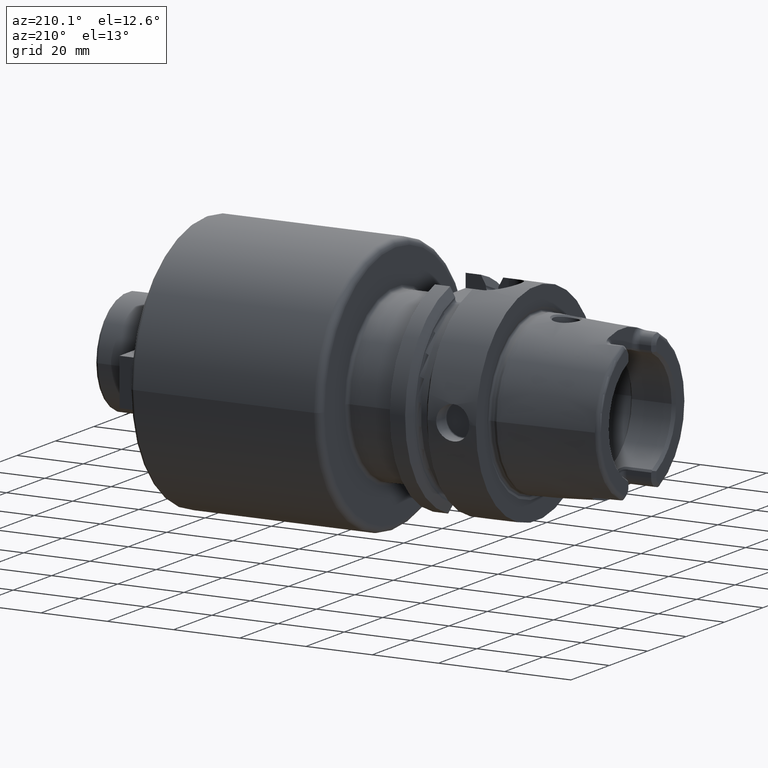
[diagram: clean part render]
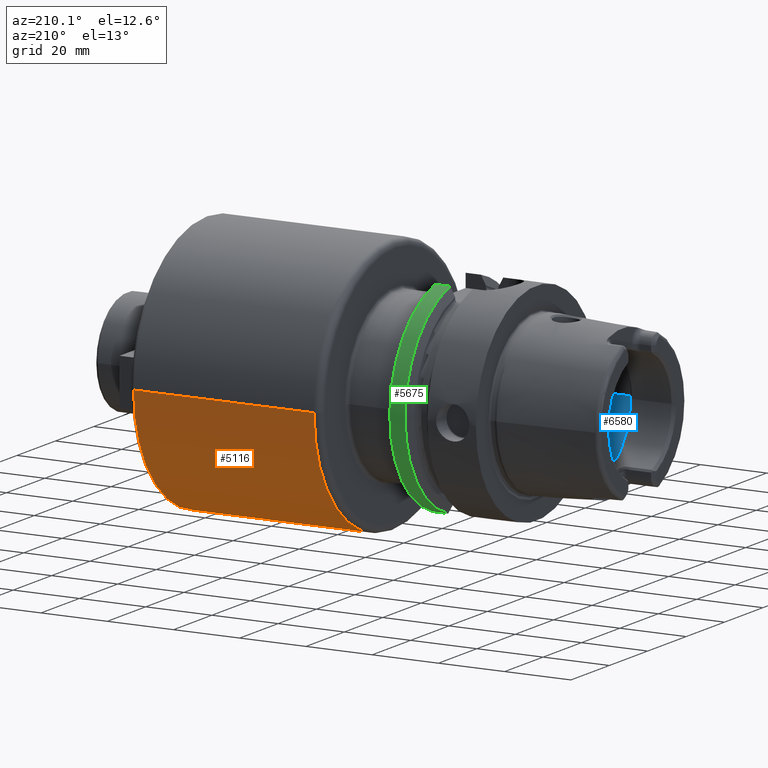
[diagram: same view with three faces highlighted in distinct colors, each labeled with its STEP entity id]
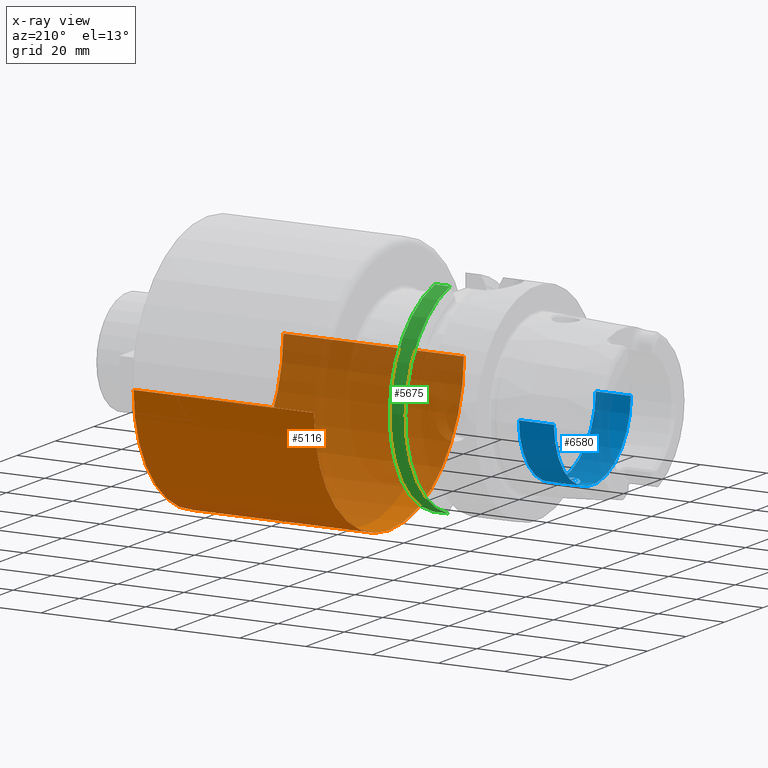
[diagram: x-ray of the same camera — body ghosted, the three highlighted faces saturated]
A machine part, auxiliary view with three faces highlighted in distinct colors.
The next image is the same camera in x-ray (body ghosted, the three faces saturated) — at least one of them is partly hidden behind the body in this view.
Their STEP definitions:

[orange] entity #5116 — the highlighted cylindrical surface (partial cylindrical patch) has radius 39 mm, axis along (1, 0, 0).
#1526=CARTESIAN_POINT('',(4.45E1,0.E0,0.E0));
#1527=DIRECTION('',(1.E0,0.E0,0.E0));
#1528=DIRECTION('',(0.E0,-1.E0,0.E0));
#1529=AXIS2_PLACEMENT_3D('',#1526,#1527,#1528);
#1531=DIRECTION('',(-1.E0,0.E0,0.E0));
#1532=VECTOR('',#1531,5.45E1);
#1533=CARTESIAN_POINT('',(9.9E1,-3.9E1,3.072033012646E-14));
#1534=LINE('',#1533,#1532);
#1535=CARTESIAN_POINT('',(9.9E1,0.E0,0.E0));
#1536=DIRECTION('',(-1.E0,0.E0,0.E0));
#1537=DIRECTION('',(0.E0,1.E0,0.E0));
#1538=AXIS2_PLACEMENT_3D('',#1535,#1536,#1537);
#1540=DIRECTION('',(-1.E0,0.E0,0.E0));
#1541=VECTOR('',#1540,5.45E1);
#1542=CARTESIAN_POINT('',(9.9E1,3.9E1,-3.191436075563E-14));
#1543=LINE('',#1542,#1541);
#3267=CARTESIAN_POINT('',(9.9E1,3.9E1,0.E0));
#3268=CARTESIAN_POINT('',(9.9E1,-3.9E1,0.E0));
#3269=VERTEX_POINT('',#3267);
#3270=VERTEX_POINT('',#3268);
#3368=CARTESIAN_POINT('',(4.45E1,-3.9E1,0.E0));
#3369=CARTESIAN_POINT('',(4.45E1,3.9E1,0.E0));
#3370=VERTEX_POINT('',#3368);
#3371=VERTEX_POINT('',#3369);
#5102=CARTESIAN_POINT('',(2.11E1,0.E0,0.E0));
#5103=DIRECTION('',(1.E0,0.E0,0.E0));
#5104=DIRECTION('',(0.E0,-1.E0,0.E0));
#5105=AXIS2_PLACEMENT_3D('',#5102,#5103,#5104);
#5106=CYLINDRICAL_SURFACE('',#5105,3.9E1);
#5107=ORIENTED_EDGE('',*,*,#5092,.F.);
#5109=ORIENTED_EDGE('',*,*,#5108,.F.);
#5111=ORIENTED_EDGE('',*,*,#5110,.F.);
#5113=ORIENTED_EDGE('',*,*,#5112,.T.);
#5114=EDGE_LOOP('',(#5107,#5109,#5111,#5113));
#5115=FACE_OUTER_BOUND('',#5114,.F.);
#5116=ADVANCED_FACE('',(#5115),#5106,.T.);
#1530=CIRCLE('',#1529,3.9E1);
#1539=CIRCLE('',#1538,3.9E1);
#5092=EDGE_CURVE('',#3370,#3371,#1530,.T.);
#5108=EDGE_CURVE('',#3270,#3370,#1534,.T.);
#5110=EDGE_CURVE('',#3269,#3270,#1539,.T.);
#5112=EDGE_CURVE('',#3269,#3371,#1543,.T.);

[blue] entity #6580 — the highlighted cylindrical surface (partial cylindrical patch) has radius 20 mm, axis along (1, 0, 0).
#2546=CARTESIAN_POINT('',(-1.275E1,0.E0,-2.E1));
#2547=CARTESIAN_POINT('',(-1.275E1,1.970797777845E-1,-2.E1));
#2548=CARTESIAN_POINT('',(-1.271933909344E1,5.855820587090E-1,
-1.999421722836E1));
#2549=CARTESIAN_POINT('',(-1.258308604776E1,1.156988201512E0,
-1.996912456378E1));
#2550=CARTESIAN_POINT('',(-1.236036877994E1,1.698340885752E0,
-1.993006069771E1));
#2551=CARTESIAN_POINT('',(-1.205588954782E1,2.199795991820E0,
-1.988058916012E1));
#2552=CARTESIAN_POINT('',(-1.167538777807E1,2.649620270025E0,
-1.982521080355E1));
#2553=CARTESIAN_POINT('',(-1.122923157921E1,3.034483606922E0,
-1.976949737947E1));
#2554=CARTESIAN_POINT('',(-1.073042246945E1,3.344039011522E0,
-1.971907966661E1));
#2555=CARTESIAN_POINT('',(-1.018735452757E1,3.573605383178E0,
-1.967844161215E1));
#2556=CARTESIAN_POINT('',(-9.606410769133E0,3.716516435875E0,
-1.965172086194E1));
#2557=CARTESIAN_POINT('',(-9.030535729406E0,3.763361658231E0,
-1.964272645946E1));
#2558=CARTESIAN_POINT('',(-8.506781906634E0,3.728806167728E0,
-1.964936056965E1));
#2559=CARTESIAN_POINT('',(-8.021198772650E0,3.630984566241E0,
-1.966777436361E1));
#2560=CARTESIAN_POINT('',(-7.558768926129E0,3.473542575992E0,
-1.969635625599E1));
#2561=CARTESIAN_POINT('',(-7.115695543339E0,3.254813817759E0,
-1.973391032126E1));
#2562=CARTESIAN_POINT('',(-6.705028812647E0,2.979233365007E0,
-1.977763044789E1));
#2563=CARTESIAN_POINT('',(-6.460595531496E0,2.764184924848E0,
-1.980840609324E1));
#2564=CARTESIAN_POINT('',(-6.344997998398E0,2.648294615690E0,
-1.982388800484E1));
#2566=CARTESIAN_POINT('',(-6.344997998398E0,-2.648294615690E0,
-1.982388800484E1));
#2567=CARTESIAN_POINT('',(-6.462044697935E0,-2.765637761618E0,
-1.980821200720E1));
#2568=CARTESIAN_POINT('',(-6.709671551165E0,-2.983133891878E0,
-1.977705807675E1));
#2569=CARTESIAN_POINT('',(-7.126034905943E0,-3.261089757929E0,
-1.973288133904E1));
#2570=CARTESIAN_POINT('',(-7.575584049692E0,-3.480770468375E0,
-1.969508061270E1));
#2571=CARTESIAN_POINT('',(-8.044905845670E0,-3.637571668188E0,
-1.966655338525E1));
#2572=CARTESIAN_POINT('',(-8.536725270309E0,-3.732857206466E0,
-1.964858692526E1));
#2573=CARTESIAN_POINT('',(-9.064387630539E0,-3.763073563083E0,
-1.964278192788E1));
#2574=CARTESIAN_POINT('',(-9.641487703756E0,-3.710628371547E0,
-1.965284319508E1));
#2575=CARTESIAN_POINT('',(-1.021950864124E1,-3.562603616823E0,
-1.968045141989E1));
#2576=CARTESIAN_POINT('',(-1.075710456701E1,-3.329816746764E0,
-1.972149542356E1));
#2577=CARTESIAN_POINT('',(-1.124928271618E1,-3.019350214938E0,
-1.977181687259E1));
#2578=CARTESIAN_POINT('',(-1.169009647422E1,-2.634399272321E0,
-1.982723525020E1));
#2579=CARTESIAN_POINT('',(-1.206569000544E1,-2.185760381770E0,
-1.988212354227E1));
#2580=CARTESIAN_POINT('',(-1.236610944677E1,-1.686459337541E0,
-1.993104484011E1));
#2581=CARTESIAN_POINT('',(-1.258557429564E1,-1.148507897483E0,
-1.996957873946E1));
#2582=CARTESIAN_POINT('',(-1.271982075329E1,-5.810738531371E-1,
-1.999430846292E1));
#2583=CARTESIAN_POINT('',(-1.275E1,-1.955235226658E-1,-2.E1));
#2584=CARTESIAN_POINT('',(-1.275E1,0.E0,-2.E1));
#2586=CARTESIAN_POINT('',(-6.344997998398E0,0.E0,0.E0));
#2587=DIRECTION('',(-1.E0,0.E0,0.E0));
#2588=DIRECTION('',(0.E0,-1.324147307845E-1,-9.911944002421E-1));
#2589=AXIS2_PLACEMENT_3D('',#2586,#2587,#2588);
#2591=DIRECTION('',(-1.E0,0.E0,0.E0));
#2592=VECTOR('',#2591,1.057256643630E1);
#2593=CARTESIAN_POINT('',(-6.344997998398E0,-2.E1,0.E0));
#2594=LINE('',#2593,#2592);
#2595=DIRECTION('',(-1.E0,0.E0,0.E0));
#2596=VECTOR('',#2595,1.057256643630E1);
#2597=CARTESIAN_POINT('',(-6.344997998398E0,2.E1,0.E0));
#2598=LINE('',#2597,#2596);
#2599=CARTESIAN_POINT('',(-6.344997998398E0,0.E0,0.E0));
#2600=DIRECTION('',(-1.E0,0.E0,0.E0));
#2601=DIRECTION('',(0.E0,1.E0,0.E0));
#2602=AXIS2_PLACEMENT_3D('',#2599,#2600,#2601);
#2604=CARTESIAN_POINT('',(-6.344997998398E0,2.648294615690E0,
-1.982388800484E1));
#2637=CARTESIAN_POINT('',(-6.344997998398E0,-2.648294615690E0,
-1.982388800484E1));
#2820=CARTESIAN_POINT('',(-1.691756443470E1,0.E0,0.E0));
#2821=DIRECTION('',(-1.E0,0.E0,0.E0));
#2822=DIRECTION('',(0.E0,1.E0,0.E0));
#2823=AXIS2_PLACEMENT_3D('',#2820,#2821,#2822);
#2895=CARTESIAN_POINT('',(-6.344997998398E0,2.E1,0.E0));
#2896=VERTEX_POINT('',#2895);
#2897=CARTESIAN_POINT('',(-1.691756443470E1,2.E1,0.E0));
#2898=VERTEX_POINT('',#2897);
#2907=CARTESIAN_POINT('',(-6.344997998398E0,-2.E1,0.E0));
#2908=VERTEX_POINT('',#2907);
#2909=CARTESIAN_POINT('',(-1.691756443470E1,-2.E1,0.E0));
#2910=VERTEX_POINT('',#2909);
#3080=VERTEX_POINT('',#2604);
#3082=VERTEX_POINT('',#2637);
#3083=VERTEX_POINT('',#2546);
#6563=CARTESIAN_POINT('',(-3.41E1,0.E0,0.E0));
#6564=DIRECTION('',(1.E0,0.E0,0.E0));
#6565=DIRECTION('',(0.E0,-1.E0,0.E0));
#6566=AXIS2_PLACEMENT_3D('',#6563,#6564,#6565);
#6567=CYLINDRICAL_SURFACE('',#6566,2.E1);
#6568=ORIENTED_EDGE('',*,*,#6517,.F.);
#6569=ORIENTED_EDGE('',*,*,#6285,.F.);
#6571=ORIENTED_EDGE('',*,*,#6570,.T.);
#6572=ORIENTED_EDGE('',*,*,#6556,.T.);
#6574=ORIENTED_EDGE('',*,*,#6573,.F.);
#6575=ORIENTED_EDGE('',*,*,#6552,.F.);
#6577=ORIENTED_EDGE('',*,*,#6576,.T.);
#6578=EDGE_LOOP('',(#6568,#6569,#6571,#6572,#6574,#6575,#6577));
#6579=FACE_OUTER_BOUND('',#6578,.F.);
#6580=ADVANCED_FACE('',(#6579),#6567,.F.);
#2565=B_SPLINE_CURVE_WITH_KNOTS('',3,(#2546,#2547,#2548,#2549,#2550,#2551,#2552,
#2553,#2554,#2555,#2556,#2557,#2558,#2559,#2560,#2561,#2562,#2563,#2564),
.UNSPECIFIED.,.F.,.F.,(4,1,1,1,1,1,1,1,1,1,1,1,1,1,1,1,4),(0.E0,6.25E-2,1.25E-1,
1.875E-1,2.5E-1,3.125E-1,3.75E-1,4.375E-1,5.E-1,5.625E-1,6.25E-1,6.875E-1,
7.5E-1,8.125E-1,8.75E-1,9.375E-1,1.E0),.UNSPECIFIED.);
#2585=B_SPLINE_CURVE_WITH_KNOTS('',3,(#2566,#2567,#2568,#2569,#2570,#2571,#2572,
#2573,#2574,#2575,#2576,#2577,#2578,#2579,#2580,#2581,#2582,#2583,#2584),
.UNSPECIFIED.,.F.,.F.,(4,1,1,1,1,1,1,1,1,1,1,1,1,1,1,1,4),(0.E0,6.25E-2,1.25E-1,
1.875E-1,2.5E-1,3.125E-1,3.75E-1,4.375E-1,5.E-1,5.625E-1,6.25E-1,6.875E-1,
7.5E-1,8.125E-1,8.75E-1,9.375E-1,1.E0),.UNSPECIFIED.);
#2590=CIRCLE('',#2589,2.E1);
#2603=CIRCLE('',#2602,2.E1);
#2824=CIRCLE('',#2823,2.E1);
#6285=EDGE_CURVE('',#3082,#3083,#2585,.T.);
#6517=EDGE_CURVE('',#3083,#3080,#2565,.T.);
#6552=EDGE_CURVE('',#2896,#2898,#2598,.T.);
#6556=EDGE_CURVE('',#2908,#2910,#2594,.T.);
#6570=EDGE_CURVE('',#3082,#2908,#2590,.T.);
#6573=EDGE_CURVE('',#2898,#2910,#2824,.T.);
#6576=EDGE_CURVE('',#2896,#3080,#2603,.T.);

[green] entity #5675 — the highlighted cylindrical surface (partial cylindrical patch) has radius 31.5 mm, axis along (1, 0, 0).
#1328=DIRECTION('',(-1.E0,0.E0,0.E0));
#1329=VECTOR('',#1328,4.622500925241E0);
#1330=CARTESIAN_POINT('',(2.6E1,9.0175E0,-3.018169467989E1));
#1331=LINE('',#1330,#1329);
#1803=DIRECTION('',(1.E0,0.E0,0.E0));
#1804=VECTOR('',#1803,4.622500925241E0);
#1805=CARTESIAN_POINT('',(2.137749907476E1,8.0175E0,3.046259499370E1));
#1806=LINE('',#1805,#1804);
#1890=CARTESIAN_POINT('',(2.6E1,0.E0,0.E0));
#1891=DIRECTION('',(1.E0,0.E0,0.E0));
#1892=DIRECTION('',(0.E0,2.862698412698E-1,-9.581490374568E-1));
#1893=AXIS2_PLACEMENT_3D('',#1890,#1891,#1892);
#2022=CARTESIAN_POINT('',(2.137749907476E1,9.0175E0,-3.018169467989E1));
#2029=CARTESIAN_POINT('',(2.137749907476E1,0.E0,0.E0));
#2030=DIRECTION('',(1.E0,0.E0,0.E0));
#2031=DIRECTION('',(0.E0,2.862698412698E-1,-9.581490374568E-1));
#2032=AXIS2_PLACEMENT_3D('',#2029,#2030,#2031);
#2039=CARTESIAN_POINT('',(2.137749907476E1,8.0175E0,3.046259499370E1));
#3211=VERTEX_POINT('',#2039);
#3240=VERTEX_POINT('',#2022);
#3330=CARTESIAN_POINT('',(2.6E1,8.0175E0,3.046259499370E1));
#3332=VERTEX_POINT('',#3330);
#3334=CARTESIAN_POINT('',(2.6E1,9.0175E0,-3.018169467989E1));
#3336=VERTEX_POINT('',#3334);
#5663=CARTESIAN_POINT('',(-3.49E1,0.E0,0.E0));
#5664=DIRECTION('',(1.E0,0.E0,0.E0));
#5665=DIRECTION('',(0.E0,-1.E0,0.E0));
#5666=AXIS2_PLACEMENT_3D('',#5663,#5664,#5665);
#5667=CYLINDRICAL_SURFACE('',#5666,3.15E1);
#5668=ORIENTED_EDGE('',*,*,#5573,.F.);
#5670=ORIENTED_EDGE('',*,*,#5669,.F.);
#5671=ORIENTED_EDGE('',*,*,#4806,.F.);
#5672=ORIENTED_EDGE('',*,*,#4933,.T.);
#5673=EDGE_LOOP('',(#5668,#5670,#5671,#5672));
#5674=FACE_OUTER_BOUND('',#5673,.F.);
#5675=ADVANCED_FACE('',(#5674),#5667,.T.);
#1894=CIRCLE('',#1893,3.15E1);
#2033=CIRCLE('',#2032,3.15E1);
#4806=EDGE_CURVE('',#3336,#3240,#1331,.T.);
#4933=EDGE_CURVE('',#3336,#3332,#1894,.T.);
#5573=EDGE_CURVE('',#3211,#3332,#1806,.T.);
#5669=EDGE_CURVE('',#3240,#3211,#2033,.T.);